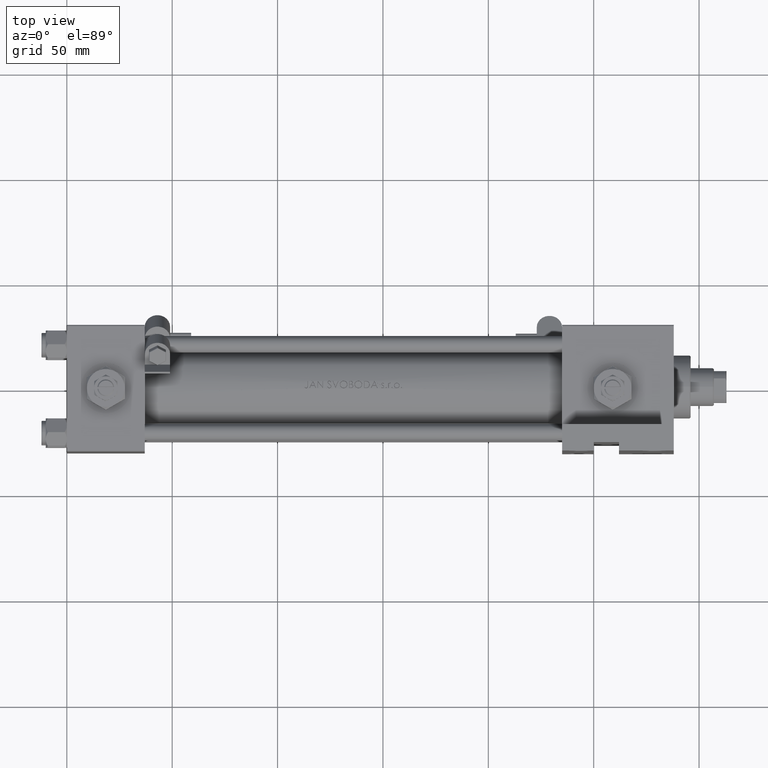
[diagram: clean part render]
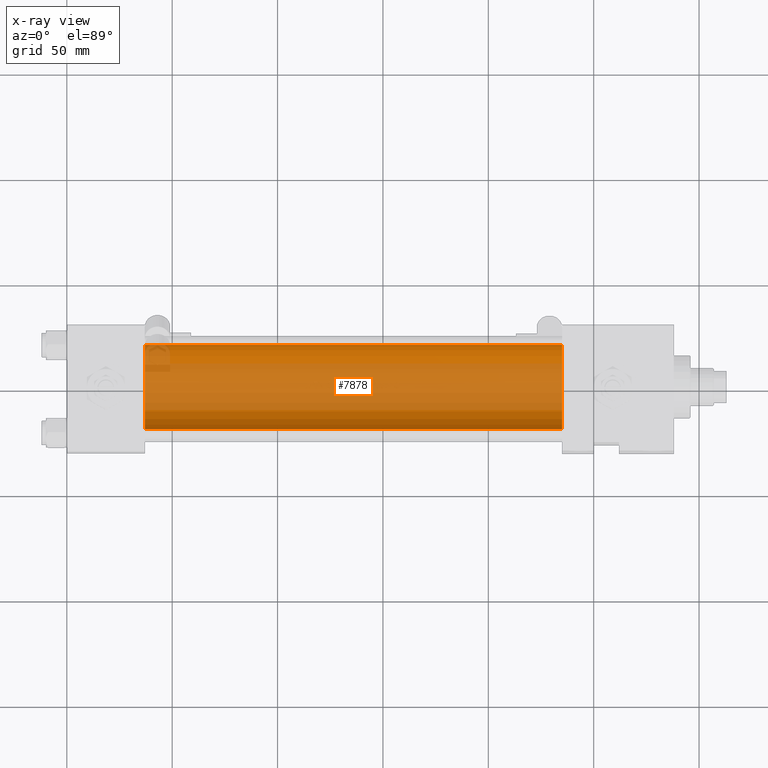
[diagram: x-ray — body ghosted, one internal face saturated and labeled with its STEP entity id]
A machine part, top view, then the same camera in x-ray: the body is ghosted and one INTERNAL B-rep face — a face not visible from any outside direction — is saturated and labeled: STEP entity #7878.
In plain terms, the highlighted cylindrical surface (partial cylindrical patch) has radius 20 mm, axis along (-1, -0, 0).
Its self-contained STEP definition (entity closure, byte-faithful):
#142 = DIRECTION ( 'NONE',  ( -1.000000000000000000, -0.000000000000000000, -0.000000000000000000 ) ) ;
#438 = EDGE_CURVE ( 'NONE', #35585, #45798, #20038, .T. ) ;
#1176 = DIRECTION ( 'NONE',  ( 1.000000000000000000, 0.000000000000000000, 0.000000000000000000 ) ) ;
#2252 = AXIS2_PLACEMENT_3D ( 'NONE', #6343, #45385, #34087 ) ;
#2275 = ORIENTED_EDGE ( 'NONE', *, *, #438, .F. ) ;
#2501 = EDGE_CURVE ( 'NONE', #45798, #37109, #27335, .T. ) ;
#5305 = CYLINDRICAL_SURFACE ( 'NONE', #18318, 20.00000000000000000 ) ;
#6343 = CARTESIAN_POINT ( 'NONE',  ( 37.00000000000000000, -1.224646799147354686E-16, 1.000000000000000888 ) ) ;
#7684 = LINE ( 'NONE', #51698, #14128 ) ;
#7774 = EDGE_CURVE ( 'NONE', #48006, #37109, #7684, .T. ) ;
#7878 = ADVANCED_FACE ( 'NONE', ( #28855 ), #5305, .F. ) ;
#9221 = DIRECTION ( 'NONE',  ( 0.000000000000000000, 0.000000000000000000, 1.000000000000000000 ) ) ;
#12192 = ORIENTED_EDGE ( 'NONE', *, *, #7774, .T. ) ;
#14128 = VECTOR ( 'NONE', #15804, 1000.000000000000000 ) ;
#15804 = DIRECTION ( 'NONE',  ( -1.000000000000000000, -0.000000000000000000, -0.000000000000000000 ) ) ;
#16826 = DIRECTION ( 'NONE',  ( -1.000000000000000000, -0.000000000000000000, -0.000000000000000000 ) ) ;
#17978 = CARTESIAN_POINT ( 'NONE',  ( 37.00000000000000000, 2.326828918379970970E-15, -19.00000000000000000 ) ) ;
#18170 = CARTESIAN_POINT ( 'NONE',  ( 235.0000000000000284, 2.326828918379970970E-15, -19.00000000000000000 ) ) ;
#18318 = AXIS2_PLACEMENT_3D ( 'NONE', #45869, #16826, #9221 ) ;
#20038 = LINE ( 'NONE', #36006, #29051 ) ;
#27335 = CIRCLE ( 'NONE', #2252, 20.00000000000000000 ) ;
#28855 = FACE_OUTER_BOUND ( 'NONE', #39561, .T. ) ;
#29051 = VECTOR ( 'NONE', #142, 1000.000000000000000 ) ;
#34087 = DIRECTION ( 'NONE',  ( 0.000000000000000000, 0.000000000000000000, -1.000000000000000000 ) ) ;
#35512 = ORIENTED_EDGE ( 'NONE', *, *, #41127, .T. ) ;
#35585 = VERTEX_POINT ( 'NONE', #18170 ) ;
#36006 = CARTESIAN_POINT ( 'NONE',  ( 235.0000000000000284, 2.326828918379970970E-15, -19.00000000000000000 ) ) ;
#36674 = ORIENTED_EDGE ( 'NONE', *, *, #2501, .F. ) ;
#37109 = VERTEX_POINT ( 'NONE', #44507 ) ;
#37284 = CARTESIAN_POINT ( 'NONE',  ( 235.0000000000000284, -1.224646799147354686E-16, 1.000000000000000888 ) ) ;
#37549 = DIRECTION ( 'NONE',  ( 0.000000000000000000, 0.000000000000000000, -1.000000000000000000 ) ) ;
#37765 = CARTESIAN_POINT ( 'NONE',  ( 235.0000000000000284, -1.224646799147354686E-16, 21.00000000000000000 ) ) ;
#39109 = AXIS2_PLACEMENT_3D ( 'NONE', #37284, #1176, #37549 ) ;
#39561 = EDGE_LOOP ( 'NONE', ( #2275, #35512, #12192, #36674 ) ) ;
#40777 = CIRCLE ( 'NONE', #39109, 20.00000000000000000 ) ;
#41127 = EDGE_CURVE ( 'NONE', #35585, #48006, #40777, .T. ) ;
#44507 = CARTESIAN_POINT ( 'NONE',  ( 37.00000000000000000, -1.224646799147354686E-16, 21.00000000000000000 ) ) ;
#45385 = DIRECTION ( 'NONE',  ( 1.000000000000000000, 0.000000000000000000, 0.000000000000000000 ) ) ;
#45798 = VERTEX_POINT ( 'NONE', #17978 ) ;
#45869 = CARTESIAN_POINT ( 'NONE',  ( 235.0000000000000284, -1.224646799147354686E-16, 1.000000000000000888 ) ) ;
#48006 = VERTEX_POINT ( 'NONE', #37765 ) ;
#51698 = CARTESIAN_POINT ( 'NONE',  ( 235.0000000000000284, -1.224646799147354686E-16, 21.00000000000000000 ) ) ;